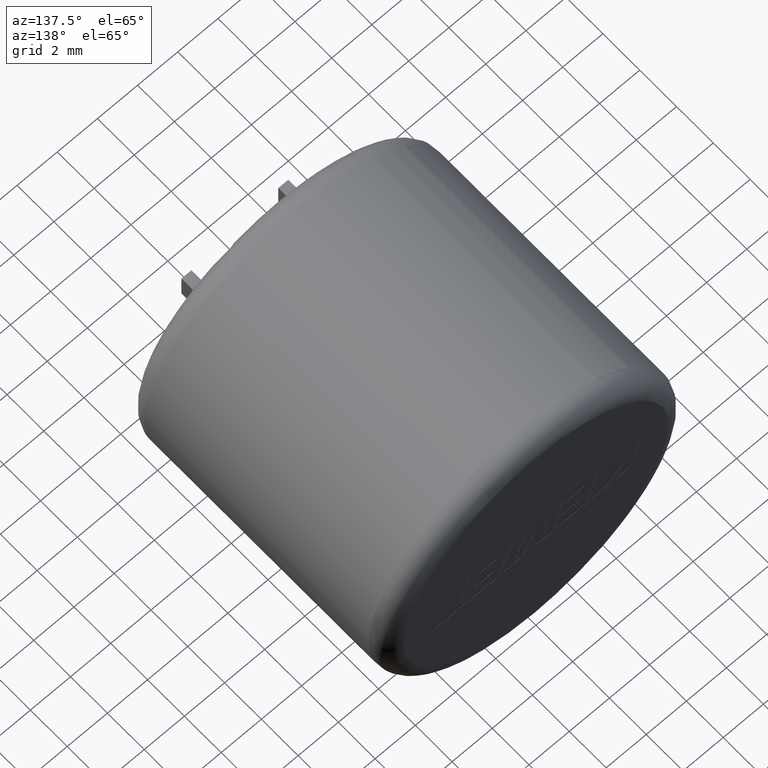
[diagram: clean part render]
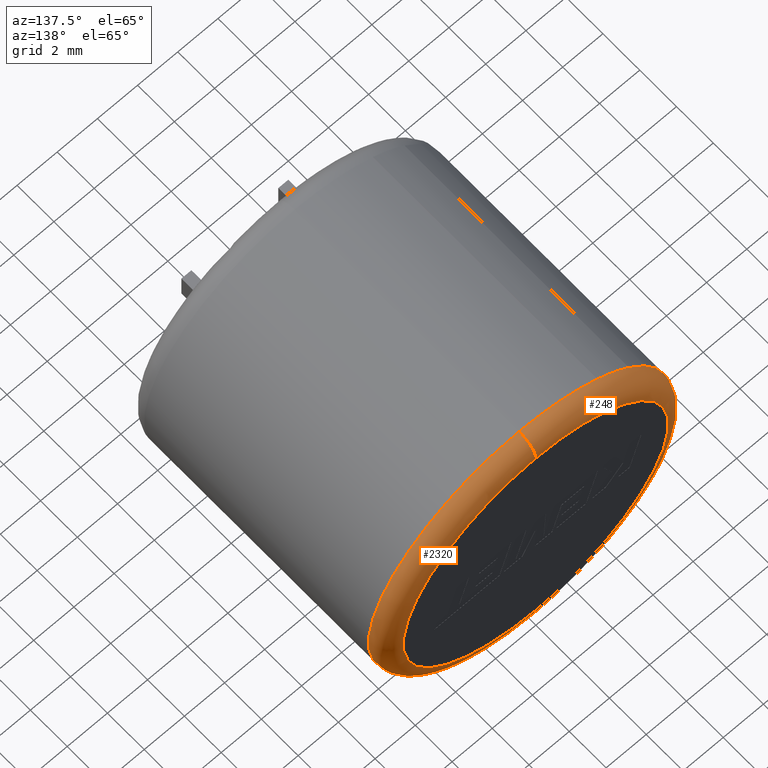
[diagram: same view with one multi-face feature highlighted, each face labeled with its STEP entity id]
A machine part, auxiliary view. The highlighted faces form ONE feature: a constant-radius fillet chain: 2 tangent blend faces with common blend radius 0.903 mm. The faces share edges in the B-rep.
Their STEP definitions:
[1] entity #2320 (Torus):
#1 = CARTESIAN_POINT ( 'NONE',  ( 8.631922963790118000E-016, 14.00000000000000000, -6.596999999999999500 ) ) ;
#18 = DIRECTION ( 'NONE',  ( 1.224646799147352500E-016, 0.0000000000000000000, -1.000000000000000000 ) ) ;
#36 = TOROIDAL_SURFACE ( 'NONE', #1954, 6.596999999999999500, 0.9030000000000000200 ) ;
#79 = EDGE_LOOP ( 'NONE', ( #1402, #502, #2528, #2048 ) ) ;
#207 = CARTESIAN_POINT ( 'NONE',  ( 0.0000000000000000000, 14.00000000000000000, 6.596999999999999500 ) ) ;
#254 = VERTEX_POINT ( 'NONE', #1 ) ;
#330 = DIRECTION ( 'NONE',  ( 0.0000000000000000000, 0.0000000000000000000, 1.000000000000000000 ) ) ;
#369 = EDGE_CURVE ( 'NONE', #2073, #254, #939, .T. ) ;
#383 = CARTESIAN_POINT ( 'NONE',  ( 0.0000000000000000000, 14.00000000000000000, 0.0000000000000000000 ) ) ;
#490 = EDGE_CURVE ( 'NONE', #2073, #1152, #932, .T. ) ;
#502 = ORIENTED_EDGE ( 'NONE', *, *, #369, .T. ) ;
#556 = DIRECTION ( 'NONE',  ( -0.0000000000000000000, -1.000000000000000000, -0.0000000000000000000 ) ) ;
#576 = DIRECTION ( 'NONE',  ( 0.0000000000000000000, 1.000000000000000000, 0.0000000000000000000 ) ) ;
#603 = VERTEX_POINT ( 'NONE', #207 ) ;
#608 = DIRECTION ( 'NONE',  ( -1.000000000000000000, 0.0000000000000000000, 0.0000000000000000000 ) ) ;
#753 = DIRECTION ( 'NONE',  ( 0.0000000000000000000, 0.0000000000000000000, 1.000000000000000000 ) ) ;
#783 = FACE_OUTER_BOUND ( 'NONE', #79, .T. ) ;
#925 = CIRCLE ( 'NONE', #2598, 0.9030000000000001400 ) ;
#932 = CIRCLE ( 'NONE', #2350, 7.500000000000000000 ) ;
#939 = CIRCLE ( 'NONE', #1926, 0.9030000000000001400 ) ;
#954 = CIRCLE ( 'NONE', #1751, 6.596999999999999500 ) ;
#972 = CARTESIAN_POINT ( 'NONE',  ( 0.0000000000000000000, 13.09700000000000100, 0.0000000000000000000 ) ) ;
#1152 = VERTEX_POINT ( 'NONE', #2138 ) ;
#1284 = DIRECTION ( 'NONE',  ( 0.0000000000000000000, 0.0000000000000000000, 1.000000000000000000 ) ) ;
#1308 = CARTESIAN_POINT ( 'NONE',  ( 8.078994933975089100E-016, 13.09700000000000100, -6.596999999999999500 ) ) ;
#1330 = EDGE_CURVE ( 'NONE', #1152, #603, #925, .T. ) ;
#1388 = EDGE_CURVE ( 'NONE', #603, #254, #954, .T. ) ;
#1402 = ORIENTED_EDGE ( 'NONE', *, *, #490, .F. ) ;
#1695 = CARTESIAN_POINT ( 'NONE',  ( 0.0000000000000000000, 13.09700000000000100, 6.596999999999999500 ) ) ;
#1751 = AXIS2_PLACEMENT_3D ( 'NONE', #383, #1902, #1284 ) ;
#1895 = CARTESIAN_POINT ( 'NONE',  ( 0.0000000000000000000, 13.09700000000000100, -7.500000000000000000 ) ) ;
#1902 = DIRECTION ( 'NONE',  ( 0.0000000000000000000, 1.000000000000000000, 0.0000000000000000000 ) ) ;
#1926 = AXIS2_PLACEMENT_3D ( 'NONE', #1308, #1983, #18 ) ;
#1954 = AXIS2_PLACEMENT_3D ( 'NONE', #972, #576, #753 ) ;
#1983 = DIRECTION ( 'NONE',  ( 1.000000000000000000, -0.0000000000000000000, 1.224646799147353200E-016 ) ) ;
#2048 = ORIENTED_EDGE ( 'NONE', *, *, #1330, .F. ) ;
#2073 = VERTEX_POINT ( 'NONE', #1895 ) ;
#2138 = CARTESIAN_POINT ( 'NONE',  ( 9.184850993605147900E-016, 13.09700000000000100, 7.500000000000000000 ) ) ;
#2238 = CARTESIAN_POINT ( 'NONE',  ( 0.0000000000000000000, 13.09700000000000100, 0.0000000000000000000 ) ) ;
#2320 = ADVANCED_FACE ( 'NONE', ( #783 ), #36, .T. ) ;
#2350 = AXIS2_PLACEMENT_3D ( 'NONE', #2238, #556, #330 ) ;
#2528 = ORIENTED_EDGE ( 'NONE', *, *, #1388, .F. ) ;
#2598 = AXIS2_PLACEMENT_3D ( 'NONE', #1695, #608, #2734 ) ;
#2734 = DIRECTION ( 'NONE',  ( 0.0000000000000000000, 0.0000000000000000000, 1.000000000000000000 ) ) ;
[2] entity #248 (Torus):
#1 = CARTESIAN_POINT ( 'NONE',  ( 8.631922963790118000E-016, 14.00000000000000000, -6.596999999999999500 ) ) ;
#18 = DIRECTION ( 'NONE',  ( 1.224646799147352500E-016, 0.0000000000000000000, -1.000000000000000000 ) ) ;
#65 = CIRCLE ( 'NONE', #1184, 7.500000000000000000 ) ;
#102 = ORIENTED_EDGE ( 'NONE', *, *, #1756, .F. ) ;
#204 = ORIENTED_EDGE ( 'NONE', *, *, #2690, .F. ) ;
#207 = CARTESIAN_POINT ( 'NONE',  ( 0.0000000000000000000, 14.00000000000000000, 6.596999999999999500 ) ) ;
#226 = EDGE_LOOP ( 'NONE', ( #734, #102, #1332, #689, #631, #204 ) ) ;
#241 = VERTEX_POINT ( 'NONE', #1065 ) ;
#248 = ADVANCED_FACE ( 'NONE', ( #1716 ), #2226, .T. ) ;
#254 = VERTEX_POINT ( 'NONE', #1 ) ;
#269 = DIRECTION ( 'NONE',  ( 0.0000000000000000000, 0.0000000000000000000, 1.000000000000000000 ) ) ;
#275 = CARTESIAN_POINT ( 'NONE',  ( 0.0000000000000000000, 14.00000000000000000, 0.0000000000000000000 ) ) ;
#361 = AXIS2_PLACEMENT_3D ( 'NONE', #275, #2413, #269 ) ;
#369 = EDGE_CURVE ( 'NONE', #2073, #254, #939, .T. ) ;
#558 = CIRCLE ( 'NONE', #1204, 7.500000000000000000 ) ;
#603 = VERTEX_POINT ( 'NONE', #207 ) ;
#608 = DIRECTION ( 'NONE',  ( -1.000000000000000000, 0.0000000000000000000, 0.0000000000000000000 ) ) ;
#627 = CARTESIAN_POINT ( 'NONE',  ( 0.0000000000000000000, 13.09700000000000100, 0.0000000000000000000 ) ) ;
#631 = ORIENTED_EDGE ( 'NONE', *, *, #1330, .T. ) ;
#689 = ORIENTED_EDGE ( 'NONE', *, *, #2381, .F. ) ;
#734 = ORIENTED_EDGE ( 'NONE', *, *, #369, .F. ) ;
#779 = AXIS2_PLACEMENT_3D ( 'NONE', #1719, #2563, #2324 ) ;
#925 = CIRCLE ( 'NONE', #2598, 0.9030000000000001400 ) ;
#939 = CIRCLE ( 'NONE', #1926, 0.9030000000000001400 ) ;
#1048 = DIRECTION ( 'NONE',  ( -0.0000000000000000000, -1.000000000000000000, -0.0000000000000000000 ) ) ;
#1065 = CARTESIAN_POINT ( 'NONE',  ( -3.896256266725530300, 13.09700000000000100, 6.408524565295981500 ) ) ;
#1068 = CIRCLE ( 'NONE', #361, 6.596999999999999500 ) ;
#1104 = DIRECTION ( 'NONE',  ( 0.0000000000000000000, 0.0000000000000000000, 1.000000000000000000 ) ) ;
#1152 = VERTEX_POINT ( 'NONE', #2138 ) ;
#1184 = AXIS2_PLACEMENT_3D ( 'NONE', #627, #1048, #1917 ) ;
#1204 = AXIS2_PLACEMENT_3D ( 'NONE', #2159, #1977, #2382 ) ;
#1286 = VERTEX_POINT ( 'NONE', #1768 ) ;
#1308 = CARTESIAN_POINT ( 'NONE',  ( 8.078994933975089100E-016, 13.09700000000000100, -6.596999999999999500 ) ) ;
#1330 = EDGE_CURVE ( 'NONE', #1152, #603, #925, .T. ) ;
#1332 = ORIENTED_EDGE ( 'NONE', *, *, #1476, .F. ) ;
#1370 = AXIS2_PLACEMENT_3D ( 'NONE', #2375, #2180, #1104 ) ;
#1476 = EDGE_CURVE ( 'NONE', #241, #1286, #558, .T. ) ;
#1597 = CIRCLE ( 'NONE', #1370, 7.500000000000000000 ) ;
#1695 = CARTESIAN_POINT ( 'NONE',  ( 0.0000000000000000000, 13.09700000000000100, 6.596999999999999500 ) ) ;
#1716 = FACE_OUTER_BOUND ( 'NONE', #226, .T. ) ;
#1719 = CARTESIAN_POINT ( 'NONE',  ( 0.0000000000000000000, 13.09700000000000100, 0.0000000000000000000 ) ) ;
#1756 = EDGE_CURVE ( 'NONE', #1286, #2073, #1597, .T. ) ;
#1768 = CARTESIAN_POINT ( 'NONE',  ( -5.447299381231525600, 13.09700000000000100, 5.155281704352792500 ) ) ;
#1895 = CARTESIAN_POINT ( 'NONE',  ( 0.0000000000000000000, 13.09700000000000100, -7.500000000000000000 ) ) ;
#1917 = DIRECTION ( 'NONE',  ( 0.0000000000000000000, 0.0000000000000000000, 1.000000000000000000 ) ) ;
#1926 = AXIS2_PLACEMENT_3D ( 'NONE', #1308, #1983, #18 ) ;
#1977 = DIRECTION ( 'NONE',  ( -0.0000000000000000000, -1.000000000000000000, -0.0000000000000000000 ) ) ;
#1983 = DIRECTION ( 'NONE',  ( 1.000000000000000000, -0.0000000000000000000, 1.224646799147353200E-016 ) ) ;
#2073 = VERTEX_POINT ( 'NONE', #1895 ) ;
#2138 = CARTESIAN_POINT ( 'NONE',  ( 9.184850993605147900E-016, 13.09700000000000100, 7.500000000000000000 ) ) ;
#2159 = CARTESIAN_POINT ( 'NONE',  ( 0.0000000000000000000, 13.09700000000000100, 0.0000000000000000000 ) ) ;
#2180 = DIRECTION ( 'NONE',  ( -0.0000000000000000000, -1.000000000000000000, -0.0000000000000000000 ) ) ;
#2226 = TOROIDAL_SURFACE ( 'NONE', #779, 6.596999999999999500, 0.9030000000000000200 ) ;
#2324 = DIRECTION ( 'NONE',  ( 0.0000000000000000000, 0.0000000000000000000, 1.000000000000000000 ) ) ;
#2375 = CARTESIAN_POINT ( 'NONE',  ( 0.0000000000000000000, 13.09700000000000100, 0.0000000000000000000 ) ) ;
#2381 = EDGE_CURVE ( 'NONE', #1152, #241, #65, .T. ) ;
#2382 = DIRECTION ( 'NONE',  ( 8.881784197001252300E-016, 0.0000000000000000000, 1.000000000000000000 ) ) ;
#2413 = DIRECTION ( 'NONE',  ( 0.0000000000000000000, 1.000000000000000000, 0.0000000000000000000 ) ) ;
#2563 = DIRECTION ( 'NONE',  ( 0.0000000000000000000, 1.000000000000000000, 0.0000000000000000000 ) ) ;
#2598 = AXIS2_PLACEMENT_3D ( 'NONE', #1695, #608, #2734 ) ;
#2690 = EDGE_CURVE ( 'NONE', #254, #603, #1068, .T. ) ;
#2734 = DIRECTION ( 'NONE',  ( 0.0000000000000000000, 0.0000000000000000000, 1.000000000000000000 ) ) ;